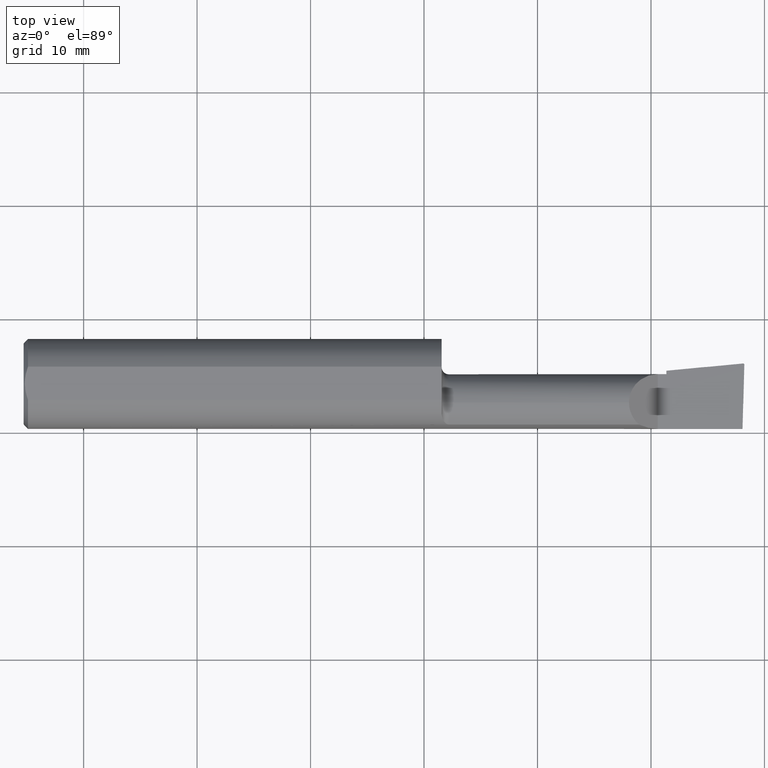
[diagram: clean part render]
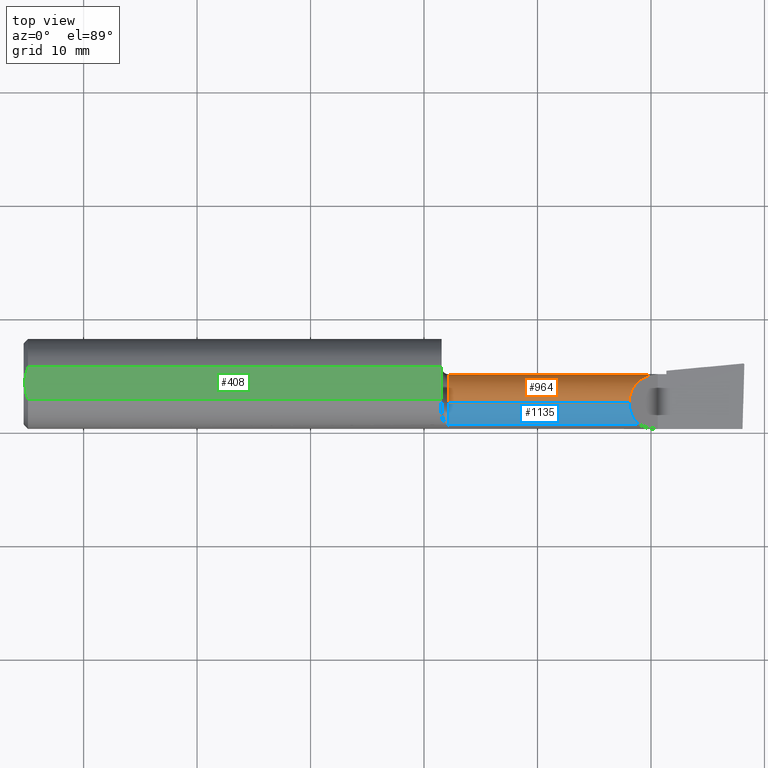
[diagram: same view with three faces highlighted in distinct colors, each labeled with its STEP entity id]
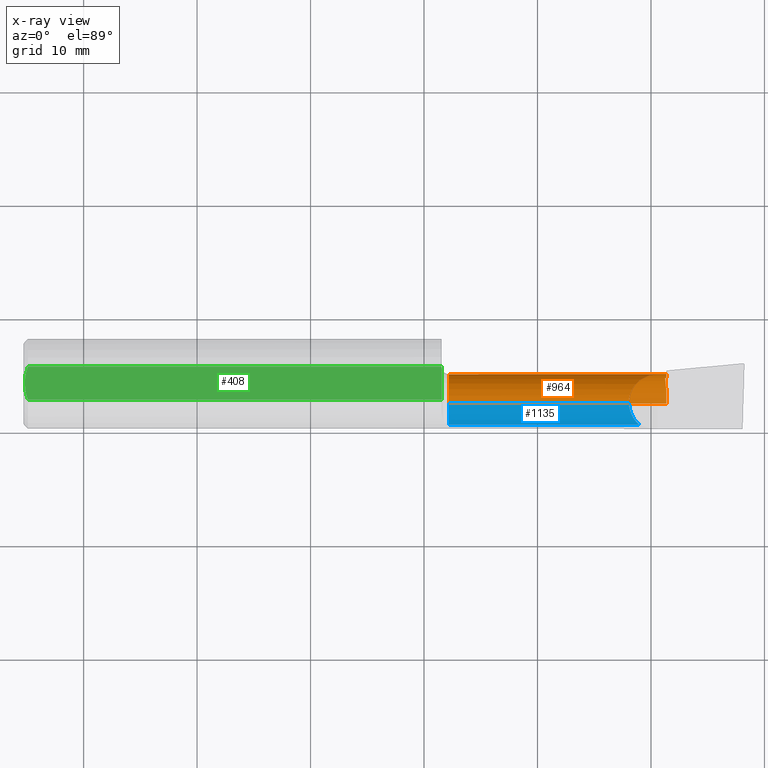
[diagram: x-ray of the same camera — body ghosted, the three highlighted faces saturated]
A machine part, top view with three faces highlighted in distinct colors.
The next image is the same camera in x-ray (body ghosted, the three faces saturated) — at least one of them is partly hidden behind the body in this view.
Their STEP definitions:

[orange] entity #964 — the highlighted cylindrical surface (edge-blend (fillet) strip) has radius 2.54 mm, axis along (-1, -0, -0).
#16 = CARTESIAN_POINT ( 'NONE',  ( 56.64199999999999591, -0.3352786765604253705, -2.155498607722263316 ) ) ;
#30 = VERTEX_POINT ( 'NONE', #976 ) ;
#49 = EDGE_CURVE ( 'NONE', #1061, #835, #501, .T. ) ;
#66 = LINE ( 'NONE', #1229, #194 ) ;
#68 = ORIENTED_EDGE ( 'NONE', *, *, #1158, .F. ) ;
#90 = DIRECTION ( 'NONE',  ( 0.000000000000000000, 0.000000000000000000, 1.000000000000000000 ) ) ;
#91 = EDGE_CURVE ( 'NONE', #967, #1137, #744, .T. ) ;
#118 = AXIS2_PLACEMENT_3D ( 'NONE', #923, #1219, #826 ) ;
#192 = CARTESIAN_POINT ( 'NONE',  ( 56.63026341365514327, -0.3381379660845336699, -2.157280987322183208 ) ) ;
#194 = VECTOR ( 'NONE', #933, 1000.000000000000000 ) ;
#198 = CARTESIAN_POINT ( 'NONE',  ( 56.61843269633380515, -0.3410007964591657559, -2.159057674088894263 ) ) ;
#199 = CARTESIAN_POINT ( 'NONE',  ( 55.88000000000000256, -1.678939999999999433, 0.000000000000000000 ) ) ;
#227 = DIRECTION ( 'NONE',  ( -1.000000000000000000, -0.000000000000000000, -0.000000000000000000 ) ) ;
#236 = DIRECTION ( 'NONE',  ( 0.000000000000000000, 0.000000000000000000, -1.000000000000000000 ) ) ;
#258 = AXIS2_PLACEMENT_3D ( 'NONE', #199, #1154, #1174 ) ;
#266 = ORIENTED_EDGE ( 'NONE', *, *, #999, .F. ) ;
#273 = CARTESIAN_POINT ( 'NONE',  ( 56.60650789487561951, -0.3438671563499280937, -2.160828660988213468 ) ) ;
#275 = EDGE_LOOP ( 'NONE', ( #1127, #1140, #944, #1037, #68, #1123, #484, #303, #266, #1122, #758 ) ) ;
#281 = CARTESIAN_POINT ( 'NONE',  ( 56.54978564970318189, 0.3211662971372761799, -1.623811351964777883 ) ) ;
#282 = LINE ( 'NONE', #304, #445 ) ;
#288 = CARTESIAN_POINT ( 'NONE',  ( 56.52208028681336316, 0.5329470779028427918, -1.248661505215254097 ) ) ;
#303 = ORIENTED_EDGE ( 'NONE', *, *, #1029, .T. ) ;
#304 = CARTESIAN_POINT ( 'NONE',  ( 36.82999999999999829, -1.678939999999999211, -2.540000000000000036 ) ) ;
#316 = CARTESIAN_POINT ( 'NONE',  ( 56.64199999999999591, 0.5162690332466178811, -1.277754788820004483 ) ) ;
#323 = CARTESIAN_POINT ( 'NONE',  ( 56.60306167935599575, 0.5218923600378170269, -1.268093797621265173 ) ) ;
#330 = CARTESIAN_POINT ( 'NONE',  ( 55.88000000000000256, 0.8610600000000002696, -8.673617379884035472E-16 ) ) ;
#342 = CARTESIAN_POINT ( 'NONE',  ( 37.46499999999999631, -1.678939999999999211, -2.540000000000000036 ) ) ;
#357 = AXIS2_PLACEMENT_3D ( 'NONE', #1017, #437, #236 ) ;
#361 = CARTESIAN_POINT ( 'NONE',  ( 54.39328266747760665, 0.8595720119238138279, 1.489257332522372135 ) ) ;
#375 = CIRCLE ( 'NONE', #258, 2.540000000000000036 ) ;
#387 = EDGE_CURVE ( 'NONE', #1047, #640, #66, .T. ) ;
#425 = DIRECTION ( 'NONE',  ( 0.000000000000000000, 0.000000000000000000, 1.000000000000000000 ) ) ;
#437 = DIRECTION ( 'NONE',  ( 1.000000000000000000, 0.000000000000000000, 0.000000000000000000 ) ) ;
#445 = VECTOR ( 'NONE', #677, 1000.000000000000000 ) ;
#471 =( BOUNDED_CURVE ( )  B_SPLINE_CURVE ( 3, ( #563, #361, #1045, #472 ),
 .UNSPECIFIED., .F., .T. ) 
 B_SPLINE_CURVE_WITH_KNOTS ( ( 4, 4 ),
 ( 4.713388980551348695, 6.283185307179586232 ),
 .UNSPECIFIED. ) 
 CURVE ( )  GEOMETRIC_REPRESENTATION_ITEM ( )  RATIONAL_B_SPLINE_CURVE ( ( 1.000000000000000000, 0.8049734974886378902, 0.8049734974886378902, 1.000000000000000000 ) ) 
 REPRESENTATION_ITEM ( '' )  );
#472 = CARTESIAN_POINT ( 'NONE',  ( 53.34253999999999252, -1.678939999999999433, 2.540000000000000036 ) ) ;
#484 = ORIENTED_EDGE ( 'NONE', *, *, #387, .T. ) ;
#487 = AXIS2_PLACEMENT_3D ( 'NONE', #1205, #227, #425 ) ;
#501 =( BOUNDED_CURVE ( )  B_SPLINE_CURVE ( 3, ( #273, #1051, #281, #288 ),
 .UNSPECIFIED., .F., .T. ) 
 B_SPLINE_CURVE_WITH_KNOTS ( ( 4, 4 ),
 ( 4.479557257772967205, 4.982985725396996912 ),
 .UNSPECIFIED. ) 
 CURVE ( )  GEOMETRIC_REPRESENTATION_ITEM ( )  RATIONAL_B_SPLINE_CURVE ( ( 1.000000000000000000, 0.9789912600431243117, 0.9789912600431243117, 1.000000000000000000 ) ) 
 REPRESENTATION_ITEM ( '' )  );
#526 = CARTESIAN_POINT ( 'NONE',  ( 36.82999999999999829, -1.678939999999999433, 2.540000000000000036 ) ) ;
#531 = EDGE_CURVE ( 'NONE', #1137, #998, #282, .T. ) ;
#541 = FACE_OUTER_BOUND ( 'NONE', #275, .T. ) ;
#546 = VERTEX_POINT ( 'NONE', #599 ) ;
#550 = DIRECTION ( 'NONE',  ( -1.000000000000000000, -0.000000000000000000, -0.000000000000000000 ) ) ;
#556 =( BOUNDED_CURVE ( )  B_SPLINE_CURVE ( 3, ( #935, #736, #323, #316 ),
 .UNSPECIFIED., .F., .F. ) 
 B_SPLINE_CURVE_WITH_KNOTS ( ( 4, 4 ),
 ( 2.885266815324717626, 2.898469550304956233 ),
 .UNSPECIFIED. ) 
 CURVE ( )  GEOMETRIC_REPRESENTATION_ITEM ( )  RATIONAL_B_SPLINE_CURVE ( ( 1.000000000000000000, 0.9999854740351713511, 0.9999854740351713511, 1.000000000000000000 ) ) 
 REPRESENTATION_ITEM ( '' )  );
#563 = CARTESIAN_POINT ( 'NONE',  ( 55.88000000000000256, 0.8610587299996853572, 0.002539999999979711265 ) ) ;
#570 = CIRCLE ( 'NONE', #357, 2.540000000000000036 ) ;
#576 = CARTESIAN_POINT ( 'NONE',  ( 56.64199999999999591, -1.678939999999999433, 0.000000000000000000 ) ) ;
#599 = CARTESIAN_POINT ( 'NONE',  ( 37.46499999999999631, -1.678939999999999433, 2.540000000000000036 ) ) ;
#605 = CARTESIAN_POINT ( 'NONE',  ( 56.52208028681336316, 0.5329470779028427918, -1.248661505215254097 ) ) ;
#638 = EDGE_CURVE ( 'NONE', #1146, #1047, #375, .T. ) ;
#640 = VERTEX_POINT ( 'NONE', #776 ) ;
#677 = DIRECTION ( 'NONE',  ( -1.000000000000000000, -0.000000000000000000, -0.000000000000000000 ) ) ;
#683 = VERTEX_POINT ( 'NONE', #904 ) ;
#708 = CIRCLE ( 'NONE', #487, 2.540000000000000036 ) ;
#724 = LINE ( 'NONE', #526, #972 ) ;
#730 = CARTESIAN_POINT ( 'NONE',  ( 56.60650789487561951, -0.3438671563499280937, -2.160828660988213468 ) ) ;
#736 = CARTESIAN_POINT ( 'NONE',  ( 56.56308786096884944, 0.5274517890126287911, -1.258395895548297228 ) ) ;
#744 = CIRCLE ( 'NONE', #786, 2.540000000000000036 ) ;
#758 = ORIENTED_EDGE ( 'NONE', *, *, #805, .F. ) ;
#760 = CARTESIAN_POINT ( 'NONE',  ( 56.64199999999999591, -1.678939999999999433, -2.540000000000000480 ) ) ;
#776 = CARTESIAN_POINT ( 'NONE',  ( 56.64199999999999591, 0.8610600000000002696, -8.673617379884035472E-16 ) ) ;
#786 = AXIS2_PLACEMENT_3D ( 'NONE', #576, #963, #90 ) ;
#805 = EDGE_CURVE ( 'NONE', #967, #1061, #1114, .T. ) ;
#817 = CYLINDRICAL_SURFACE ( 'NONE', #118, 2.540000000000000036 ) ;
#826 = DIRECTION ( 'NONE',  ( 0.000000000000000000, 0.000000000000000000, 1.000000000000000000 ) ) ;
#835 = VERTEX_POINT ( 'NONE', #605 ) ;
#877 = CARTESIAN_POINT ( 'NONE',  ( 56.60650789487561951, -0.3438671563499280937, -2.160828660988213468 ) ) ;
#904 = CARTESIAN_POINT ( 'NONE',  ( 56.64199999999999591, 0.5162690332466178811, -1.277754788820004483 ) ) ;
#923 = CARTESIAN_POINT ( 'NONE',  ( 36.82999999999999829, -1.678939999999999433, 0.000000000000000000 ) ) ;
#933 = DIRECTION ( 'NONE',  ( 1.000000000000000000, 0.000000000000000000, 0.000000000000000000 ) ) ;
#935 = CARTESIAN_POINT ( 'NONE',  ( 56.52208028681336316, 0.5329470779028427918, -1.248661505215254097 ) ) ;
#939 = EDGE_CURVE ( 'NONE', #998, #546, #570, .T. ) ;
#942 = CARTESIAN_POINT ( 'NONE',  ( 55.88000000000000256, 0.8610587299996853572, 0.002539999999979711265 ) ) ;
#944 = ORIENTED_EDGE ( 'NONE', *, *, #939, .T. ) ;
#963 = DIRECTION ( 'NONE',  ( -1.000000000000000000, -0.000000000000000000, -0.000000000000000000 ) ) ;
#964 = ADVANCED_FACE ( 'NONE', ( #541 ), #817, .T. ) ;
#967 = VERTEX_POINT ( 'NONE', #1211 ) ;
#972 = VECTOR ( 'NONE', #550, 1000.000000000000000 ) ;
#976 = CARTESIAN_POINT ( 'NONE',  ( 53.34253999999999252, -1.678939999999999433, 2.540000000000000036 ) ) ;
#998 = VERTEX_POINT ( 'NONE', #342 ) ;
#999 = EDGE_CURVE ( 'NONE', #835, #683, #556, .T. ) ;
#1017 = CARTESIAN_POINT ( 'NONE',  ( 37.46499999999999631, -1.678939999999999433, 0.000000000000000000 ) ) ;
#1029 = EDGE_CURVE ( 'NONE', #640, #683, #708, .T. ) ;
#1037 = ORIENTED_EDGE ( 'NONE', *, *, #1038, .F. ) ;
#1038 = EDGE_CURVE ( 'NONE', #30, #546, #724, .T. ) ;
#1045 = CARTESIAN_POINT ( 'NONE',  ( 53.34253999999997831, -0.1922219241183829586, 2.540000000000000036 ) ) ;
#1047 = VERTEX_POINT ( 'NONE', #330 ) ;
#1051 = CARTESIAN_POINT ( 'NONE',  ( 56.57853211268948712, 0.02262286437494908514, -1.934391978167296466 ) ) ;
#1061 = VERTEX_POINT ( 'NONE', #730 ) ;
#1114 =( BOUNDED_CURVE ( )  B_SPLINE_CURVE ( 3, ( #16, #192, #198, #877 ),
 .UNSPECIFIED., .F., .T. ) 
 B_SPLINE_CURVE_WITH_KNOTS ( ( 4, 4 ),
 ( 3.384715756874630443, 3.388695282948744669 ),
 .UNSPECIFIED. ) 
 CURVE ( )  GEOMETRIC_REPRESENTATION_ITEM ( )  RATIONAL_B_SPLINE_CURVE ( ( 1.000000000000000000, 0.9999986802814542219, 0.9999986802814542219, 1.000000000000000000 ) ) 
 REPRESENTATION_ITEM ( '' )  );
#1122 = ORIENTED_EDGE ( 'NONE', *, *, #49, .F. ) ;
#1123 = ORIENTED_EDGE ( 'NONE', *, *, #638, .T. ) ;
#1127 = ORIENTED_EDGE ( 'NONE', *, *, #91, .T. ) ;
#1137 = VERTEX_POINT ( 'NONE', #760 ) ;
#1140 = ORIENTED_EDGE ( 'NONE', *, *, #531, .T. ) ;
#1146 = VERTEX_POINT ( 'NONE', #942 ) ;
#1154 = DIRECTION ( 'NONE',  ( -1.000000000000000000, -0.000000000000000000, -0.000000000000000000 ) ) ;
#1158 = EDGE_CURVE ( 'NONE', #1146, #30, #471, .T. ) ;
#1174 = DIRECTION ( 'NONE',  ( 0.000000000000000000, 0.000000000000000000, 1.000000000000000000 ) ) ;
#1205 = CARTESIAN_POINT ( 'NONE',  ( 56.64199999999999591, -1.678939999999999433, 0.000000000000000000 ) ) ;
#1211 = CARTESIAN_POINT ( 'NONE',  ( 56.64199999999999591, -0.3352786765604253705, -2.155498607722263316 ) ) ;
#1219 = DIRECTION ( 'NONE',  ( -1.000000000000000000, -0.000000000000000000, -0.000000000000000000 ) ) ;
#1229 = CARTESIAN_POINT ( 'NONE',  ( 36.82999999999999829, 0.8610600000000002696, -8.673617379884035472E-16 ) ) ;

[blue] entity #1135 — the highlighted cylindrical surface (edge-blend (fillet) strip) has radius 2.54 mm, axis along (-1, -0, -0).
#30 = VERTEX_POINT ( 'NONE', #976 ) ;
#44 = AXIS2_PLACEMENT_3D ( 'NONE', #747, #1126, #674 ) ;
#79 = ORIENTED_EDGE ( 'NONE', *, *, #465, .T. ) ;
#98 = VECTOR ( 'NONE', #975, 1000.000000000000000 ) ;
#116 = CIRCLE ( 'NONE', #569, 2.540000000000000036 ) ;
#132 = EDGE_CURVE ( 'NONE', #30, #1196, #1245, .T. ) ;
#159 = DIRECTION ( 'NONE',  ( 1.000000000000000000, 0.000000000000000000, 0.000000000000000000 ) ) ;
#193 = CARTESIAN_POINT ( 'NONE',  ( 46.73599999999999710, -3.599887049924355154, 1.661794942640912653 ) ) ;
#221 = CARTESIAN_POINT ( 'NONE',  ( 53.65407863508172426, -3.109668751225283412, 2.228461364918261189 ) ) ;
#232 = ORIENTED_EDGE ( 'NONE', *, *, #132, .F. ) ;
#263 = FACE_OUTER_BOUND ( 'NONE', #1226, .T. ) ;
#335 = DIRECTION ( 'NONE',  ( 0.000000000000000000, 0.000000000000000000, -1.000000000000000000 ) ) ;
#453 = ORIENTED_EDGE ( 'NONE', *, *, #515, .T. ) ;
#465 = EDGE_CURVE ( 'NONE', #546, #476, #116, .T. ) ;
#476 = VERTEX_POINT ( 'NONE', #539 ) ;
#515 = EDGE_CURVE ( 'NONE', #476, #1196, #797, .T. ) ;
#519 = CARTESIAN_POINT ( 'NONE',  ( 53.34253999999998541, -2.428222866824016446, 2.540000000000000036 ) ) ;
#526 = CARTESIAN_POINT ( 'NONE',  ( 36.82999999999999829, -1.678939999999999433, 2.540000000000000036 ) ) ;
#539 = CARTESIAN_POINT ( 'NONE',  ( 37.46499999999999631, -3.599887049924355154, 1.661794942640912653 ) ) ;
#546 = VERTEX_POINT ( 'NONE', #599 ) ;
#550 = DIRECTION ( 'NONE',  ( -1.000000000000000000, -0.000000000000000000, -0.000000000000000000 ) ) ;
#569 = AXIS2_PLACEMENT_3D ( 'NONE', #648, #159, #335 ) ;
#599 = CARTESIAN_POINT ( 'NONE',  ( 37.46499999999999631, -1.678939999999999433, 2.540000000000000036 ) ) ;
#648 = CARTESIAN_POINT ( 'NONE',  ( 37.46499999999999631, -1.678939999999999433, 0.000000000000000000 ) ) ;
#658 = CYLINDRICAL_SURFACE ( 'NONE', #44, 2.540000000000000036 ) ;
#674 = DIRECTION ( 'NONE',  ( 0.000000000000000000, 0.000000000000000000, 1.000000000000000000 ) ) ;
#724 = LINE ( 'NONE', #526, #972 ) ;
#747 = CARTESIAN_POINT ( 'NONE',  ( 36.82999999999999829, -1.678939999999999433, 0.000000000000000000 ) ) ;
#755 = CARTESIAN_POINT ( 'NONE',  ( 54.22074505735906769, -3.599887049924353821, 1.661794942640917094 ) ) ;
#797 = LINE ( 'NONE', #193, #98 ) ;
#972 = VECTOR ( 'NONE', #550, 1000.000000000000000 ) ;
#975 = DIRECTION ( 'NONE',  ( 1.000000000000000000, 0.000000000000000000, 0.000000000000000000 ) ) ;
#976 = CARTESIAN_POINT ( 'NONE',  ( 53.34253999999999252, -1.678939999999999433, 2.540000000000000036 ) ) ;
#1038 = EDGE_CURVE ( 'NONE', #30, #546, #724, .T. ) ;
#1081 = CARTESIAN_POINT ( 'NONE',  ( 54.22074505735906769, -3.599887049924353821, 1.661794942640917094 ) ) ;
#1093 = CARTESIAN_POINT ( 'NONE',  ( 53.34253999999999252, -1.678939999999999433, 2.540000000000000036 ) ) ;
#1126 = DIRECTION ( 'NONE',  ( -1.000000000000000000, -0.000000000000000000, -0.000000000000000000 ) ) ;
#1129 = ORIENTED_EDGE ( 'NONE', *, *, #1038, .T. ) ;
#1135 = ADVANCED_FACE ( 'NONE', ( #263 ), #658, .T. ) ;
#1196 = VERTEX_POINT ( 'NONE', #755 ) ;
#1226 = EDGE_LOOP ( 'NONE', ( #232, #1129, #79, #453 ) ) ;
#1245 =( BOUNDED_CURVE ( )  B_SPLINE_CURVE ( 3, ( #1093, #519, #221, #1081 ),
 .UNSPECIFIED., .F., .F. ) 
 B_SPLINE_CURVE_WITH_KNOTS ( ( 4, 4 ),
 ( 0.000000000000000000, 0.8576058604657700313 ),
 .UNSPECIFIED. ) 
 CURVE ( )  GEOMETRIC_REPRESENTATION_ITEM ( )  RATIONAL_B_SPLINE_CURVE ( ( 1.000000000000000000, 0.9396427478180653381, 0.9396427478180653381, 1.000000000000000000 ) ) 
 REPRESENTATION_ITEM ( '' )  );

[green] entity #408 — the highlighted planar face has unit normal (0, 0, -1).
#29 = CARTESIAN_POINT ( 'NONE',  ( 0.2946835978831989777, -1.227949873118057589, 3.685539999999999150 ) ) ;
#36 = LINE ( 'NONE', #219, #791 ) ;
#37 = B_SPLINE_CURVE_WITH_KNOTS ( 'NONE', 3,
 ( #819, #714, #1202, #1097, #29, #136 ),
 .UNSPECIFIED., .F., .F.,
 ( 4, 2, 4 ),
 ( 0.004431269906162986494, 0.005173847132308764286, 0.005916424358454542079 ),
 .UNSPECIFIED. ) ;
#43 = VECTOR ( 'NONE', #915, 1000.000000000000000 ) ;
#134 = CARTESIAN_POINT ( 'NONE',  ( 63.50000000000000000, -1.462034237629201039, 3.685539999999999150 ) ) ;
#136 = CARTESIAN_POINT ( 'NONE',  ( 0.3809999999999924558, -1.462034237629201039, 3.685539999999999150 ) ) ;
#149 = EDGE_LOOP ( 'NONE', ( #349, #665, #903, #182, #167 ) ) ;
#167 = ORIENTED_EDGE ( 'NONE', *, *, #265, .F. ) ;
#182 = ORIENTED_EDGE ( 'NONE', *, *, #697, .T. ) ;
#202 = LINE ( 'NONE', #134, #43 ) ;
#219 = CARTESIAN_POINT ( 'NONE',  ( 63.50000000000000000, 1.462034237629201039, 3.685539999999999150 ) ) ;
#235 = PLANE ( 'NONE',  #1170 ) ;
#265 = EDGE_CURVE ( 'NONE', #613, #1083, #202, .T. ) ;
#347 = CARTESIAN_POINT ( 'NONE',  ( 0.000000000000000000, 2.540000000000000480, 3.685539999999999150 ) ) ;
#349 = ORIENTED_EDGE ( 'NONE', *, *, #751, .F. ) ;
#408 = ADVANCED_FACE ( 'NONE', ( #632 ), #235, .F. ) ;
#419 = DIRECTION ( 'NONE',  ( 1.000000000000000000, 0.000000000000000000, 0.000000000000000000 ) ) ;
#506 = B_SPLINE_CURVE_WITH_KNOTS ( 'NONE', 3,
 ( #627, #1103, #1011, #1194, #706, #537 ),
 .UNSPECIFIED., .F., .F.,
 ( 4, 2, 4 ),
 ( 0.002945485300212928158, 0.003688377603187957543, 0.004431269906162986494 ),
 .UNSPECIFIED. ) ;
#508 = VECTOR ( 'NONE', #910, 1000.000000000000000 ) ;
#528 = CARTESIAN_POINT ( 'NONE',  ( 36.82999999999999829, 2.540000000000000480, 3.685539999999999150 ) ) ;
#537 = CARTESIAN_POINT ( 'NONE',  ( 0.1015999999999948056, 3.500044931498621813E-16, 3.685539999999999150 ) ) ;
#613 = VERTEX_POINT ( 'NONE', #878 ) ;
#627 = CARTESIAN_POINT ( 'NONE',  ( 0.3809999999999924558, 1.462034237629201039, 3.685539999999999150 ) ) ;
#632 = FACE_OUTER_BOUND ( 'NONE', #149, .T. ) ;
#665 = ORIENTED_EDGE ( 'NONE', *, *, #725, .F. ) ;
#671 = DIRECTION ( 'NONE',  ( -0.000000000000000000, 0.000000000000000000, -1.000000000000000000 ) ) ;
#697 = EDGE_CURVE ( 'NONE', #938, #1083, #37, .T. ) ;
#706 = CARTESIAN_POINT ( 'NONE',  ( 0.1015999999999299547, 0.2511217935535139389, 3.685539999999999150 ) ) ;
#714 = CARTESIAN_POINT ( 'NONE',  ( 0.1015999999999284698, -0.2510152873235154125, 3.685539999999999150 ) ) ;
#720 = EDGE_CURVE ( 'NONE', #1186, #938, #506, .T. ) ;
#725 = EDGE_CURVE ( 'NONE', #1186, #861, #36, .T. ) ;
#740 = DIRECTION ( 'NONE',  ( -1.000000000000000000, 0.000000000000000000, 0.000000000000000000 ) ) ;
#751 = EDGE_CURVE ( 'NONE', #861, #613, #810, .T. ) ;
#787 = CARTESIAN_POINT ( 'NONE',  ( 36.82999999999999829, 1.462034237629201039, 3.685539999999999150 ) ) ;
#791 = VECTOR ( 'NONE', #419, 1000.000000000000000 ) ;
#810 = LINE ( 'NONE', #528, #508 ) ;
#819 = CARTESIAN_POINT ( 'NONE',  ( 0.1015999999999948056, 3.500044931498621813E-16, 3.685539999999999150 ) ) ;
#833 = CARTESIAN_POINT ( 'NONE',  ( 0.3809999999999924558, -1.462034237629201039, 3.685539999999999150 ) ) ;
#861 = VERTEX_POINT ( 'NONE', #787 ) ;
#878 = CARTESIAN_POINT ( 'NONE',  ( 36.82999999999999829, -1.462034237629201483, 3.685539999999999150 ) ) ;
#903 = ORIENTED_EDGE ( 'NONE', *, *, #720, .T. ) ;
#910 = DIRECTION ( 'NONE',  ( 0.000000000000000000, -1.000000000000000000, 0.000000000000000000 ) ) ;
#915 = DIRECTION ( 'NONE',  ( -1.000000000000000000, -0.000000000000000000, -0.000000000000000000 ) ) ;
#938 = VERTEX_POINT ( 'NONE', #982 ) ;
#982 = CARTESIAN_POINT ( 'NONE',  ( 0.1015999999999948056, 3.500044931498621813E-16, 3.685539999999999150 ) ) ;
#1011 = CARTESIAN_POINT ( 'NONE',  ( 0.2235145214959431414, 0.9851334071146859994, 3.685539999999999594 ) ) ;
#1050 = CARTESIAN_POINT ( 'NONE',  ( 0.3809999999999924558, 1.462034237629201039, 3.685539999999999150 ) ) ;
#1083 = VERTEX_POINT ( 'NONE', #833 ) ;
#1097 = CARTESIAN_POINT ( 'NONE',  ( 0.2247358976179796297, -0.9898225455501730163, 3.685539999999998706 ) ) ;
#1103 = CARTESIAN_POINT ( 'NONE',  ( 0.2941137992624218711, 1.226404617004863917, 3.685539999999999150 ) ) ;
#1170 = AXIS2_PLACEMENT_3D ( 'NONE', #347, #671, #740 ) ;
#1186 = VERTEX_POINT ( 'NONE', #1050 ) ;
#1194 = CARTESIAN_POINT ( 'NONE',  ( 0.1274433735584585836, 0.4981409861471362555, 3.685539999999998706 ) ) ;
#1202 = CARTESIAN_POINT ( 'NONE',  ( 0.1280887710546985137, -0.5028858476047466386, 3.685539999999999594 ) ) ;